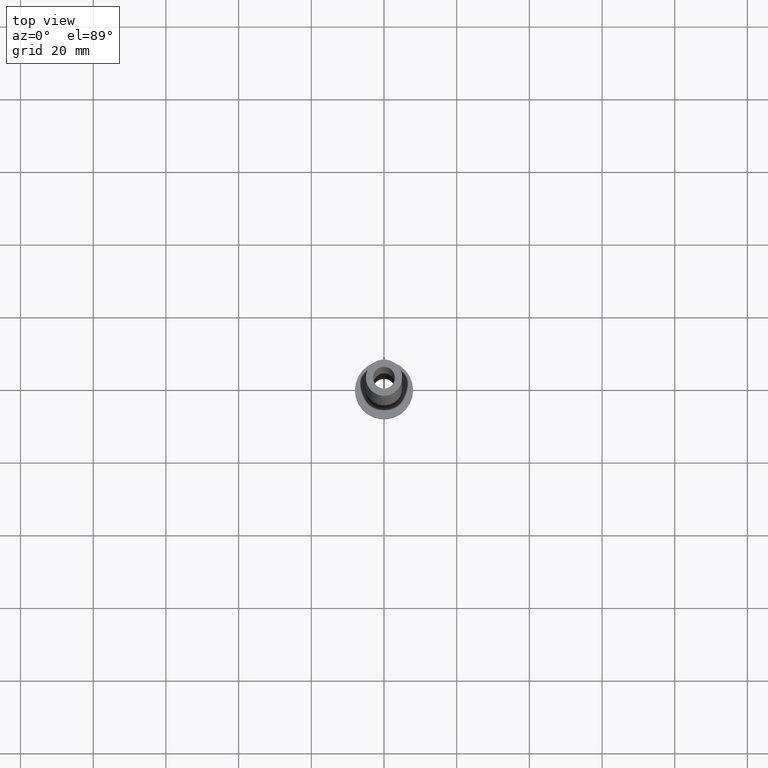
[diagram: clean part render]
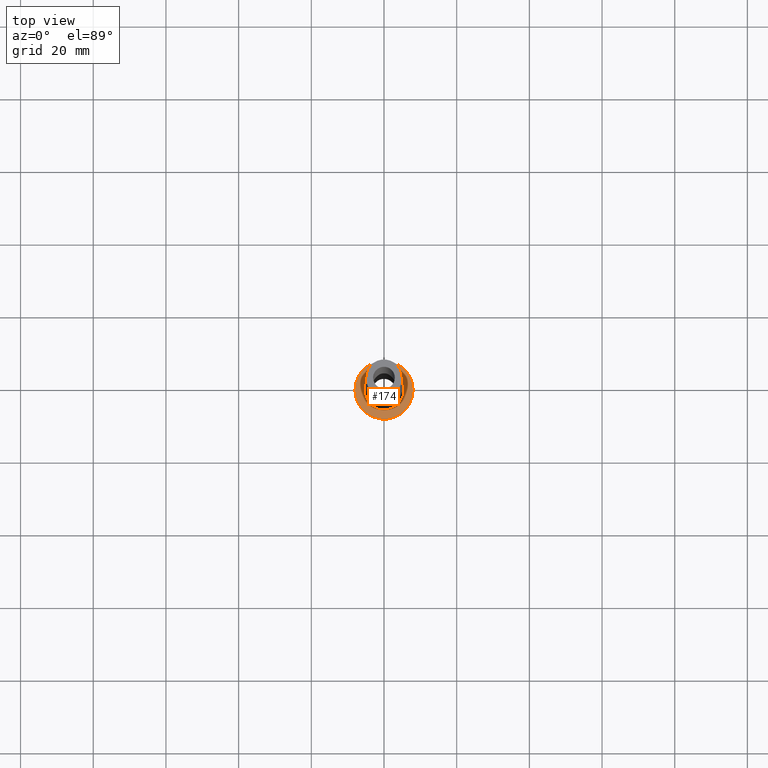
[diagram: same view with one face highlighted and labeled with its STEP entity id]
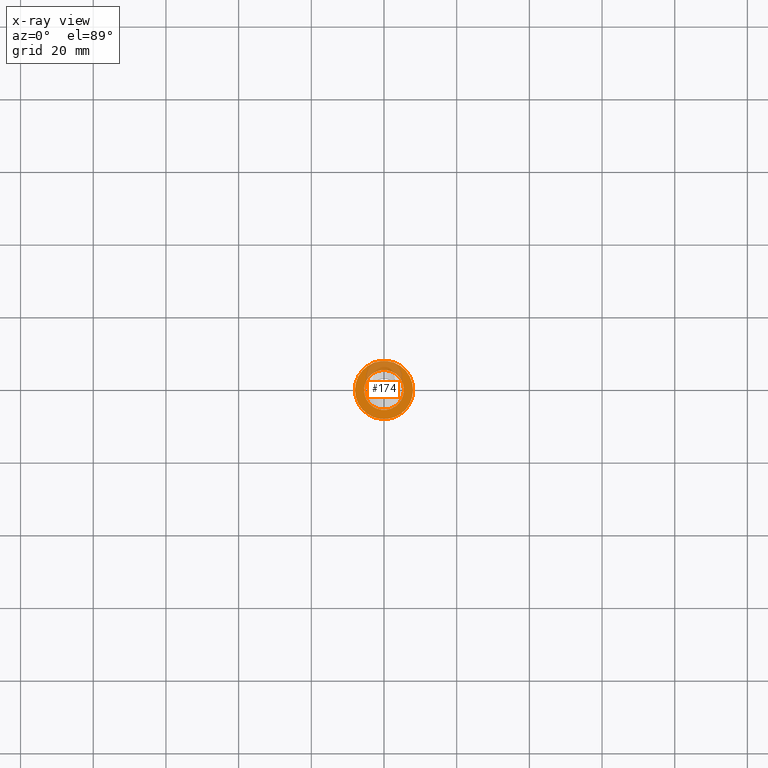
[diagram: x-ray of the same camera — body ghosted, the highlighted face saturated]
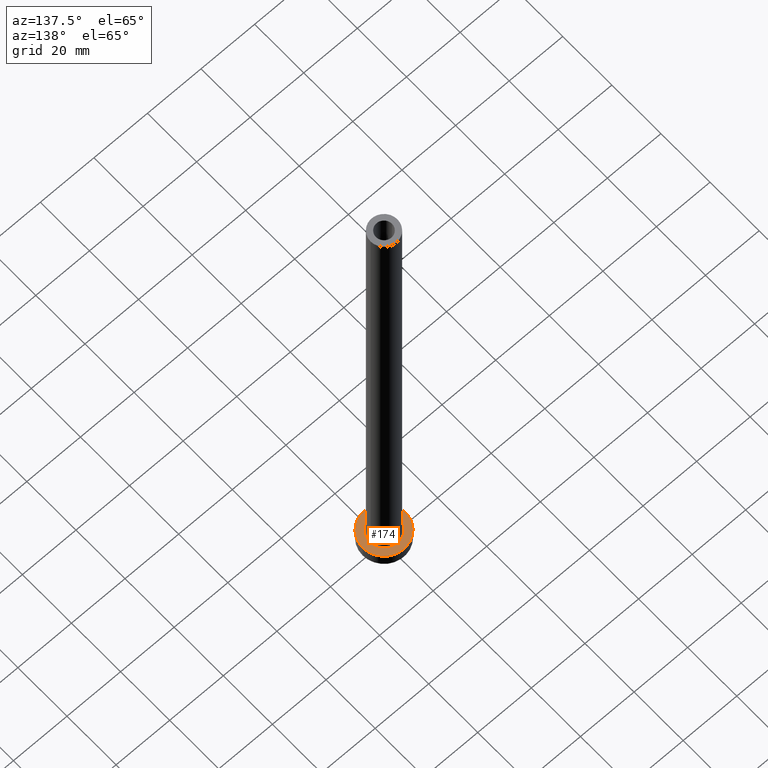
[diagram: same view with one face highlighted and labeled with its STEP entity id]
A machine part, top view. The second image highlights one B-rep face of the part: STEP entity #174.
The next image is the same camera in x-ray: the body ghosted, the highlighted face saturated — about 24% of this face is hidden behind the body in this view.
A second angle (auxiliary view) of the same face is appended — the face is thin or edge-on in the first view.
In plain terms, the highlighted planar face has unit normal (0, 0, 1).
Its self-contained STEP definition (entity closure, byte-faithful):
#25 = CARTESIAN_POINT ( 'NONE',  ( 5.500000000000000000, 0.000000000000000000, 5.000000000000002665 ) ) ;
#34 = DIRECTION ( 'NONE',  ( 1.000000000000000000, 0.000000000000000000, 0.000000000000000000 ) ) ;
#35 = AXIS2_PLACEMENT_3D ( 'NONE', #261, #86, #169 ) ;
#49 = AXIS2_PLACEMENT_3D ( 'NONE', #154, #353, #34 ) ;
#72 = EDGE_CURVE ( 'NONE', #101, #204, #310, .T. ) ;
#85 = EDGE_CURVE ( 'NONE', #408, #451, #457, .T. ) ;
#86 = DIRECTION ( 'NONE',  ( 0.000000000000000000, 0.000000000000000000, 1.000000000000000000 ) ) ;
#88 = CARTESIAN_POINT ( 'NONE',  ( 0.000000000000000000, 0.000000000000000000, 5.000000000000000000 ) ) ;
#89 = DIRECTION ( 'NONE',  ( 1.000000000000000000, 0.000000000000000000, -0.000000000000000000 ) ) ;
#90 = CARTESIAN_POINT ( 'NONE',  ( -5.500000000000000000, 6.735557395310442023E-16, 5.000000000000002665 ) ) ;
#101 = VERTEX_POINT ( 'NONE', #90 ) ;
#107 = CIRCLE ( 'NONE', #49, 5.500000000000000000 ) ;
#117 = CARTESIAN_POINT ( 'NONE',  ( -8.000000000000000000, 0.000000000000000000, 5.000000000000000000 ) ) ;
#129 = PLANE ( 'NONE',  #230 ) ;
#142 = ORIENTED_EDGE ( 'NONE', *, *, #72, .T. ) ;
#148 = DIRECTION ( 'NONE',  ( 0.000000000000000000, 0.000000000000000000, 1.000000000000000000 ) ) ;
#154 = CARTESIAN_POINT ( 'NONE',  ( 0.000000000000000000, 0.000000000000000000, 5.000000000000000000 ) ) ;
#165 = CARTESIAN_POINT ( 'NONE',  ( 8.000000000000000000, 9.797174393178825657E-16, 5.000000000000000000 ) ) ;
#167 = FACE_BOUND ( 'NONE', #259, .T. ) ;
#169 = DIRECTION ( 'NONE',  ( 1.000000000000000000, 0.000000000000000000, 0.000000000000000000 ) ) ;
#171 = AXIS2_PLACEMENT_3D ( 'NONE', #461, #148, #286 ) ;
#174 = ADVANCED_FACE ( 'NONE', ( #167, #443 ), #129, .T. ) ;
#194 = DIRECTION ( 'NONE',  ( 1.000000000000000000, 0.000000000000000000, 0.000000000000000000 ) ) ;
#203 = CARTESIAN_POINT ( 'NONE',  ( 0.000000000000000000, 0.000000000000000000, 5.000000000000000000 ) ) ;
#204 = VERTEX_POINT ( 'NONE', #25 ) ;
#207 = EDGE_LOOP ( 'NONE', ( #419, #354 ) ) ;
#230 = AXIS2_PLACEMENT_3D ( 'NONE', #203, #301, #89 ) ;
#259 = EDGE_LOOP ( 'NONE', ( #386, #142 ) ) ;
#261 = CARTESIAN_POINT ( 'NONE',  ( 0.000000000000000000, 0.000000000000000000, 5.000000000000000000 ) ) ;
#265 = CIRCLE ( 'NONE', #171, 8.000000000000000000 ) ;
#286 = DIRECTION ( 'NONE',  ( 1.000000000000000000, 0.000000000000000000, 0.000000000000000000 ) ) ;
#301 = DIRECTION ( 'NONE',  ( 0.000000000000000000, 0.000000000000000000, 1.000000000000000000 ) ) ;
#309 = DIRECTION ( 'NONE',  ( -0.000000000000000000, -0.000000000000000000, -1.000000000000000000 ) ) ;
#310 = CIRCLE ( 'NONE', #326, 5.500000000000000000 ) ;
#326 = AXIS2_PLACEMENT_3D ( 'NONE', #88, #309, #194 ) ;
#338 = EDGE_CURVE ( 'NONE', #204, #101, #107, .T. ) ;
#353 = DIRECTION ( 'NONE',  ( -0.000000000000000000, -0.000000000000000000, -1.000000000000000000 ) ) ;
#354 = ORIENTED_EDGE ( 'NONE', *, *, #361, .T. ) ;
#361 = EDGE_CURVE ( 'NONE', #451, #408, #265, .T. ) ;
#386 = ORIENTED_EDGE ( 'NONE', *, *, #338, .T. ) ;
#408 = VERTEX_POINT ( 'NONE', #117 ) ;
#419 = ORIENTED_EDGE ( 'NONE', *, *, #85, .T. ) ;
#443 = FACE_OUTER_BOUND ( 'NONE', #207, .T. ) ;
#451 = VERTEX_POINT ( 'NONE', #165 ) ;
#457 = CIRCLE ( 'NONE', #35, 8.000000000000000000 ) ;
#461 = CARTESIAN_POINT ( 'NONE',  ( 0.000000000000000000, 0.000000000000000000, 5.000000000000000000 ) ) ;